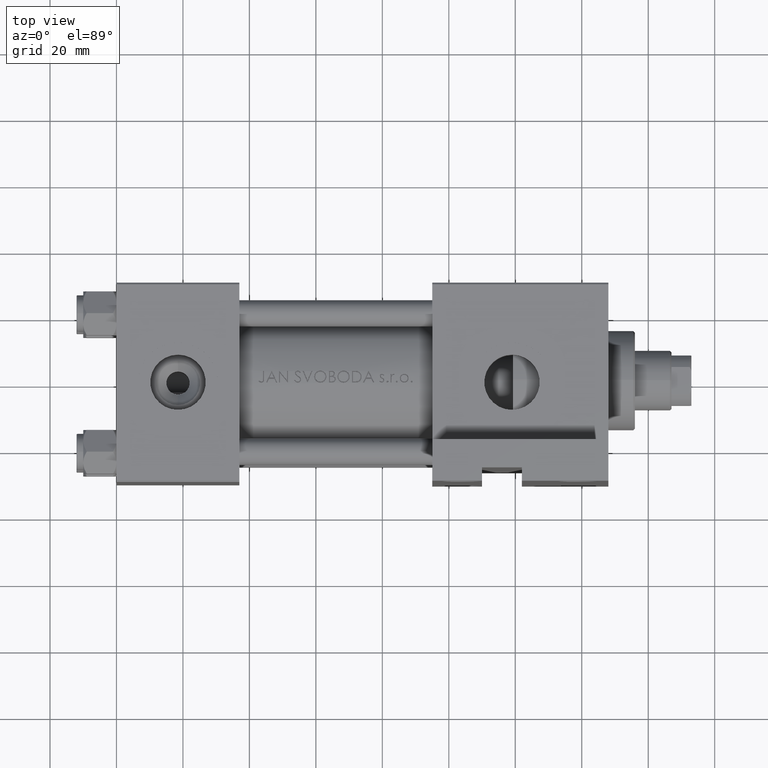
[diagram: clean part render]
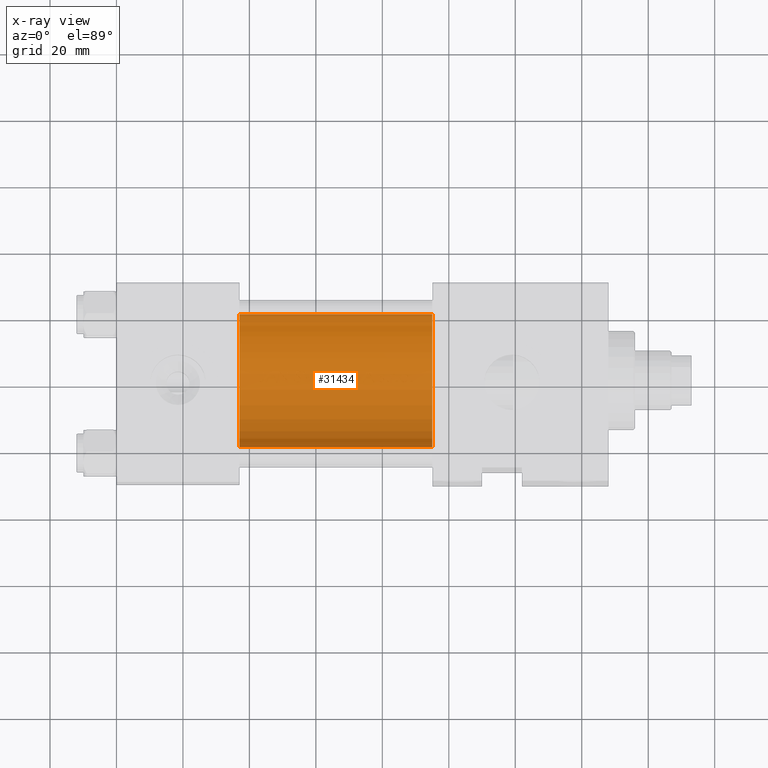
[diagram: x-ray — body ghosted, one internal face saturated and labeled with its STEP entity id]
A machine part, top view, then the same camera in x-ray: the body is ghosted and one INTERNAL B-rep face — a face not visible from any outside direction — is saturated and labeled: STEP entity #31434.
In plain terms, the highlighted cylindrical surface (partial cylindrical patch) has radius 20 mm, axis along (-1, -0, 0).
Its self-contained STEP definition (entity closure, byte-faithful):
#5074 = DIRECTION ( 'NONE',  ( 0.000000000000000000, 0.000000000000000000, -1.000000000000000000 ) ) ;
#7329 = VECTOR ( 'NONE', #41908, 1000.000000000000000 ) ;
#8013 = CARTESIAN_POINT ( 'NONE',  ( 37.00000000000000000, 2.326828918379970576E-15, -19.00000000000000000 ) ) ;
#11697 = AXIS2_PLACEMENT_3D ( 'NONE', #27252, #30923, #27729 ) ;
#11751 = CARTESIAN_POINT ( 'NONE',  ( 37.00000000000000000, -1.224646799147354686E-16, 1.000000000000000888 ) ) ;
#12371 = CARTESIAN_POINT ( 'NONE',  ( 95.00000000000000000, 2.326828918379970576E-15, -19.00000000000000000 ) ) ;
#12726 = CYLINDRICAL_SURFACE ( 'NONE', #15040, 20.00000000000000000 ) ;
#15040 = AXIS2_PLACEMENT_3D ( 'NONE', #34899, #27752, #16923 ) ;
#15435 = VECTOR ( 'NONE', #27469, 1000.000000000000000 ) ;
#16148 = CARTESIAN_POINT ( 'NONE',  ( 95.00000000000000000, 2.326828918379970576E-15, -19.00000000000000000 ) ) ;
#16862 = VERTEX_POINT ( 'NONE', #8013 ) ;
#16923 = DIRECTION ( 'NONE',  ( 0.000000000000000000, 0.000000000000000000, 1.000000000000000000 ) ) ;
#20868 = EDGE_CURVE ( 'NONE', #47810, #44524, #33706, .T. ) ;
#21643 = CARTESIAN_POINT ( 'NONE',  ( 37.00000000000000000, -1.224646799147354686E-16, 21.00000000000000000 ) ) ;
#23449 = CARTESIAN_POINT ( 'NONE',  ( 95.00000000000000000, -1.224646799147354686E-16, 21.00000000000000000 ) ) ;
#23987 = VERTEX_POINT ( 'NONE', #21643 ) ;
#25411 = ORIENTED_EDGE ( 'NONE', *, *, #48769, .F. ) ;
#26248 = AXIS2_PLACEMENT_3D ( 'NONE', #11751, #26785, #5074 ) ;
#26785 = DIRECTION ( 'NONE',  ( 1.000000000000000000, 0.000000000000000000, 0.000000000000000000 ) ) ;
#27252 = CARTESIAN_POINT ( 'NONE',  ( 95.00000000000000000, -1.224646799147354686E-16, 1.000000000000000888 ) ) ;
#27469 = DIRECTION ( 'NONE',  ( -1.000000000000000000, -0.000000000000000000, -0.000000000000000000 ) ) ;
#27729 = DIRECTION ( 'NONE',  ( 0.000000000000000000, 0.000000000000000000, -1.000000000000000000 ) ) ;
#27752 = DIRECTION ( 'NONE',  ( -1.000000000000000000, -0.000000000000000000, -0.000000000000000000 ) ) ;
#30923 = DIRECTION ( 'NONE',  ( 1.000000000000000000, 0.000000000000000000, 0.000000000000000000 ) ) ;
#31434 = ADVANCED_FACE ( 'NONE', ( #46955 ), #12726, .F. ) ;
#33706 = CIRCLE ( 'NONE', #11697, 20.00000000000000000 ) ;
#34098 = EDGE_LOOP ( 'NONE', ( #25411, #45056, #43066, #45631 ) ) ;
#34522 = LINE ( 'NONE', #23449, #7329 ) ;
#34609 = LINE ( 'NONE', #16148, #15435 ) ;
#34899 = CARTESIAN_POINT ( 'NONE',  ( 95.00000000000000000, -1.224646799147354686E-16, 1.000000000000000888 ) ) ;
#37533 = EDGE_CURVE ( 'NONE', #44524, #23987, #34522, .T. ) ;
#38043 = CIRCLE ( 'NONE', #26248, 20.00000000000000000 ) ;
#38950 = EDGE_CURVE ( 'NONE', #16862, #23987, #38043, .T. ) ;
#41908 = DIRECTION ( 'NONE',  ( -1.000000000000000000, -0.000000000000000000, -0.000000000000000000 ) ) ;
#42084 = CARTESIAN_POINT ( 'NONE',  ( 95.00000000000000000, -1.224646799147354686E-16, 21.00000000000000000 ) ) ;
#43066 = ORIENTED_EDGE ( 'NONE', *, *, #37533, .T. ) ;
#44524 = VERTEX_POINT ( 'NONE', #42084 ) ;
#45056 = ORIENTED_EDGE ( 'NONE', *, *, #20868, .T. ) ;
#45631 = ORIENTED_EDGE ( 'NONE', *, *, #38950, .F. ) ;
#46955 = FACE_OUTER_BOUND ( 'NONE', #34098, .T. ) ;
#47810 = VERTEX_POINT ( 'NONE', #12371 ) ;
#48769 = EDGE_CURVE ( 'NONE', #47810, #16862, #34609, .T. ) ;